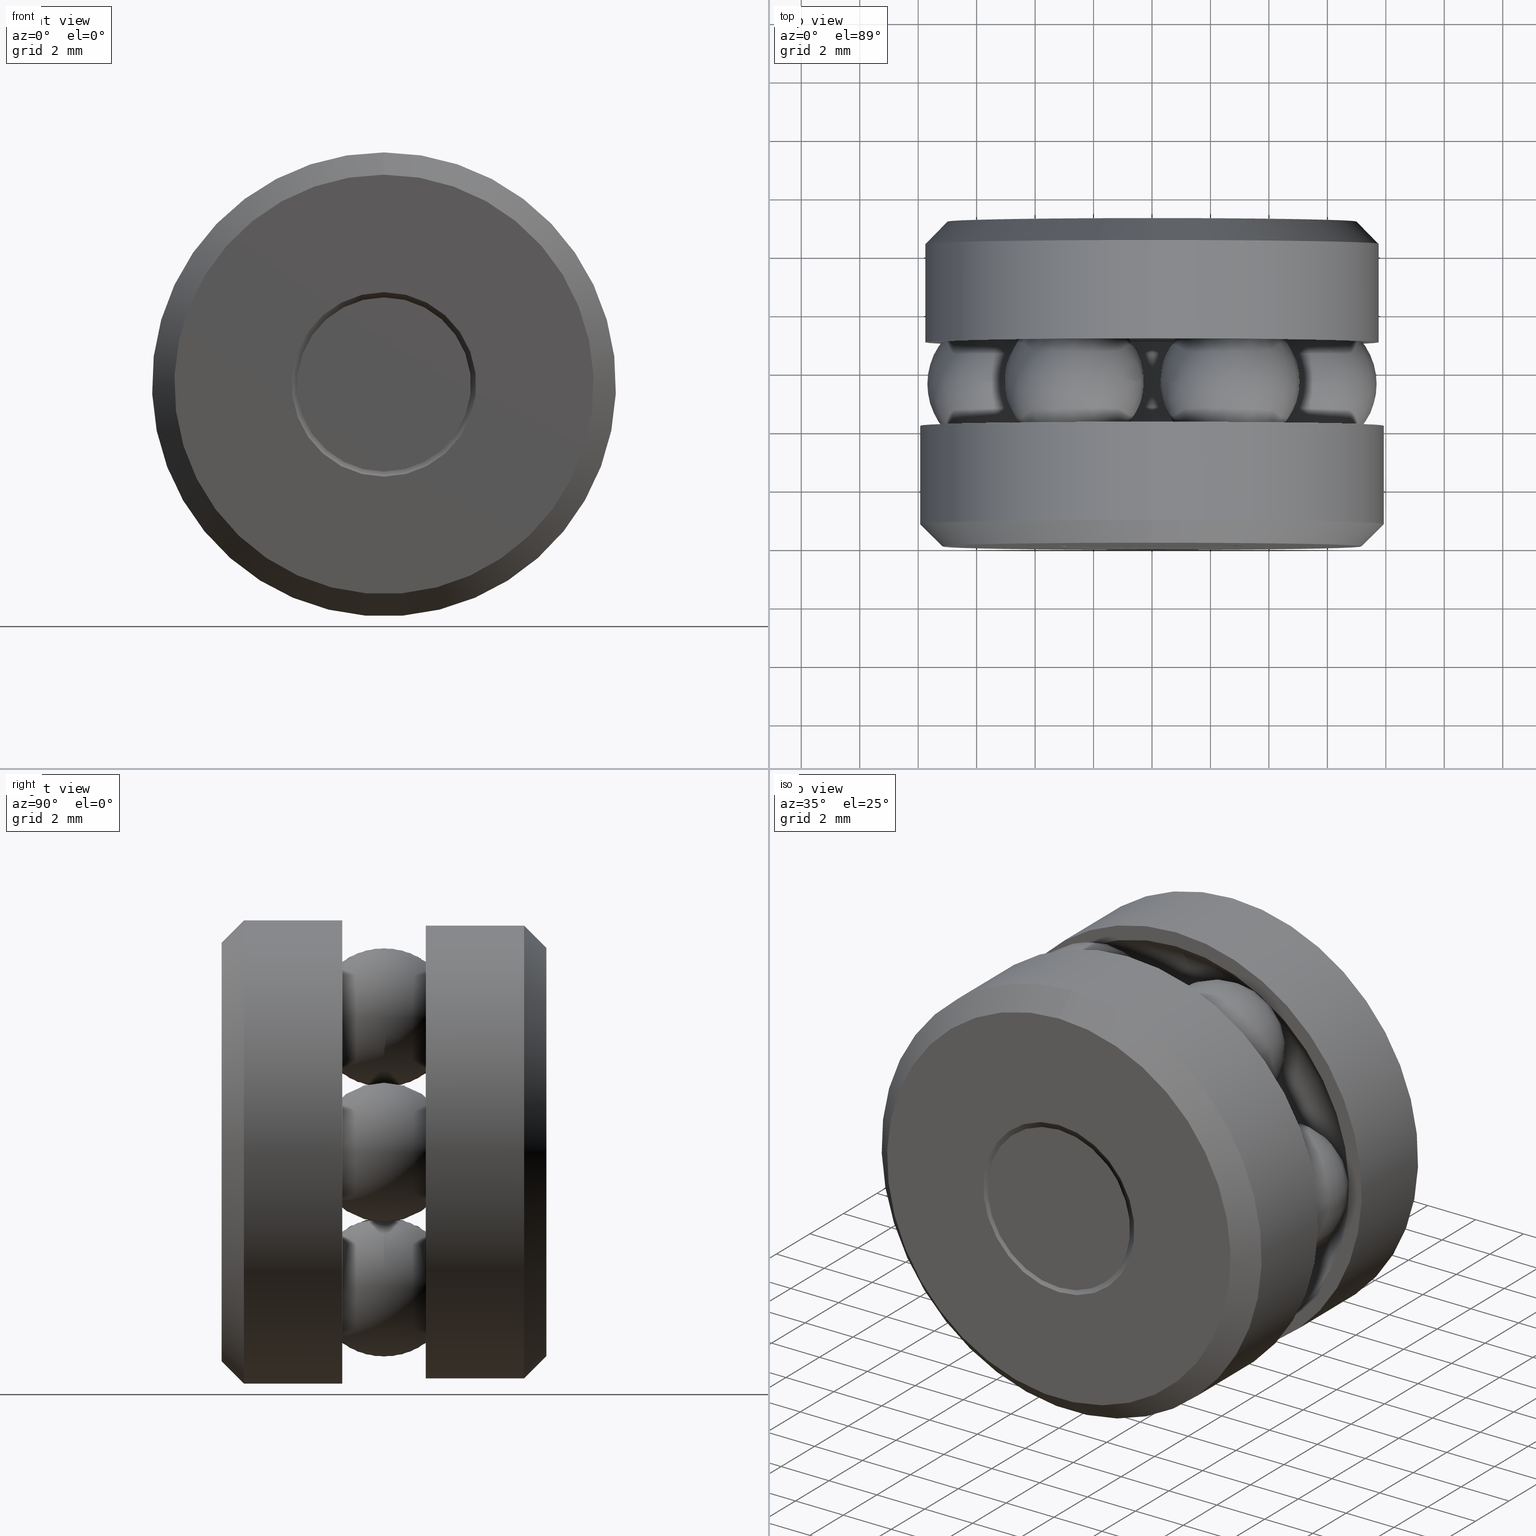
[diagram: canonical four-view strip — front | top / right | iso, engineering-drawing reading convention]
A machine part, canonical four-view strip (front | top / right | iso — engineering-drawing reading convention). The complete STEP part file that produces these views, byte-faithful:
ISO-10303-21;
HEADER;
FILE_DESCRIPTION (( 'STEP AP203' ),
    '1' );
FILE_NAME ('T-114RG_T-114RG-0010.step',
    '2016-02-04T15:34:08',
    ( '' ),
    ( '' ),
    'SwSTEP 2.0',
    'SolidWorks 2016',
    '' );
FILE_SCHEMA (( 'CONFIG_CONTROL_DESIGN' ));
ENDSEC;

DATA;
#1 = AXIS2_PLACEMENT_3D ( 'NONE', #13, #2, #132 ) ;
#2 = DIRECTION ( 'NONE',  ( -0.0000000000000000000, 1.000000000000000000, -0.0000000000000000000 ) ) ;
#3 = EDGE_LOOP ( 'NONE', ( #130 ) ) ;
#4 = FACE_OUTER_BOUND ( 'NONE', #224, .T. ) ;
#5 = ORIENTED_EDGE ( 'NONE', *, *, #222, .T. ) ;
#6 = AXIS2_PLACEMENT_3D ( 'NONE', #388, #401, #424 ) ;
#7 = ADVANCED_FACE ( 'NONE', ( #118 ), #383, .T. ) ;
#8 = VERTEX_POINT ( 'NONE', #527 ) ;
#9 = ORIENTED_EDGE ( 'NONE', *, *, #21, .F. ) ;
#10 = EDGE_LOOP ( 'NONE', ( #79 ) ) ;
#11 = EDGE_LOOP ( 'NONE', ( #114 ) ) ;
#12 = EDGE_LOOP ( 'NONE', ( #56 ) ) ;
#13 = CARTESIAN_POINT ( 'NONE',  ( 0.0000000000000000000, 0.0000000000000000000, 0.0000000000000000000 ) ) ;
#14 = AXIS2_PLACEMENT_3D ( 'NONE', #198, #193, #191 ) ;
#15 = AXIS2_PLACEMENT_3D ( 'NONE', #516, #270, #150 ) ;
#16 = AXIS2_PLACEMENT_3D ( 'NONE', #508, #171, #512 ) ;
#17 = DIRECTION ( 'NONE',  ( 0.0000000000000000000, 0.0000000000000000000, 1.000000000000000000 ) ) ;
#18 = CLOSED_SHELL ( 'NONE', ( #119 ) ) ;
#19 = AXIS2_PLACEMENT_3D ( 'NONE', #429, #312, #308 ) ;
#20 = PERSON_AND_ORGANIZATION ( #382, #482 ) ;
#21 = EDGE_CURVE ( 'NONE', #375, #375, #505, .T. ) ;
#22 = CARTESIAN_POINT ( 'NONE',  ( 0.2097499999999999900, 0.2187500000000000000, -1.464676421644694500E-015 ) ) ;
#23 = CC_DESIGN_PERSON_AND_ORGANIZATION_ASSIGNMENT ( #20, #367, ( #487 ) ) ;
#24 = DIRECTION ( 'NONE',  ( 0.0000000000000000000, 0.0000000000000000000, 1.000000000000000000 ) ) ;
#25 = ORIENTED_EDGE ( 'NONE', *, *, #365, .F. ) ;
#26 = ORIENTED_EDGE ( 'NONE', *, *, #325, .T. ) ;
#27 = DIRECTION ( 'NONE',  ( 0.0000000000000000000, 0.0000000000000000000, 1.000000000000000000 ) ) ;
#28 = DIRECTION ( 'NONE',  ( 0.0000000000000000000, 0.0000000000000000000, 1.000000000000000000 ) ) ;
#29 = MANIFOLD_SOLID_BREP ( 'Revolve3', #155 ) ;
#30 = DIRECTION ( 'NONE',  ( -0.0000000000000000000, 1.000000000000000000, -0.0000000000000000000 ) ) ;
#31 = CLOSED_SHELL ( 'NONE', ( #513 ) ) ;
#32 = ORIENTED_EDGE ( 'NONE', *, *, #131, .T. ) ;
#33 = COORDINATED_UNIVERSAL_TIME_OFFSET ( 5, 0, .BEHIND. ) ;
#34 = CARTESIAN_POINT ( 'NONE',  ( 0.0000000000000000000, 0.4375000000000000000, 0.0000000000000000000 ) ) ;
#35 = FACE_OUTER_BOUND ( 'NONE', #12, .T. ) ;
#36 = CARTESIAN_POINT ( 'NONE',  ( 0.1048750000000008600, 0.2187500000000000000, 0.1816488284437855500 ) ) ;
#37 = SPHERICAL_SURFACE ( 'NONE', #521, 0.09375000000000002800 ) ;
#38 = DIRECTION ( 'NONE',  ( -0.0000000000000000000, 1.000000000000000000, 0.0000000000000000000 ) ) ;
#39 = ORIENTED_EDGE ( 'NONE', *, *, #54, .T. ) ;
#40 = ORIENTED_EDGE ( 'NONE', *, *, #131, .F. ) ;
#41 = FACE_OUTER_BOUND ( 'NONE', #227, .T. ) ;
#42 = ORIENTED_EDGE ( 'NONE', *, *, #398, .F. ) ;
#43 = AXIS2_PLACEMENT_3D ( 'NONE', #92, #104, #128 ) ;
#44 = FACE_OUTER_BOUND ( 'NONE', #394, .T. ) ;
#45 = CONICAL_SURFACE ( 'NONE', #16, 0.2755000000000000800, 0.7853981633974426200 ) ;
#46 = ORIENTED_EDGE ( 'NONE', *, *, #333, .T. ) ;
#47 = DIRECTION ( 'NONE',  ( -0.0000000000000000000, 1.000000000000000000, -0.0000000000000000000 ) ) ;
#48 = AXIS2_PLACEMENT_3D ( 'NONE', #535, #452, #490 ) ;
#49 = DIRECTION ( 'NONE',  ( 0.0000000000000000000, 0.0000000000000000000, 1.000000000000000000 ) ) ;
#50 = ORIENTED_EDGE ( 'NONE', *, *, #333, .F. ) ;
#51 = ORIENTED_EDGE ( 'NONE', *, *, #222, .F. ) ;
#52 = ORIENTED_EDGE ( 'NONE', *, *, #167, .T. ) ;
#53 = AXIS2_PLACEMENT_3D ( 'NONE', #544, #102, #303 ) ;
#54 = EDGE_CURVE ( 'NONE', #274, #274, #440, .T. ) ;
#55 = FACE_OUTER_BOUND ( 'NONE', #209, .T. ) ;
#56 = ORIENTED_EDGE ( 'NONE', *, *, #223, .T. ) ;
#57 = ORIENTED_EDGE ( 'NONE', *, *, #208, .F. ) ;
#58 = ADVANCED_FACE ( 'NONE', ( #427, #517 ), #109, .F. ) ;
#59 = CC_DESIGN_DATE_AND_TIME_ASSIGNMENT ( #145, #359, ( #487 ) ) ;
#60 = CONICAL_SURFACE ( 'NONE', #548, 0.3125000000000000000, 0.7853981633974430600 ) ;
#61 = CIRCLE ( 'NONE', #163, 0.3125000000000000000 ) ;
#62 = DIRECTION ( 'NONE',  ( -0.0000000000000000000, 1.000000000000000000, -0.0000000000000000000 ) ) ;
#63 = ORIENTED_EDGE ( 'NONE', *, *, #348, .F. ) ;
#64 = ADVANCED_FACE ( 'NONE', ( #332, #292 ), #239, .T. ) ;
#65 = FACE_BOUND ( 'NONE', #258, .T. ) ;
#66 = ORIENTED_EDGE ( 'NONE', *, *, #407, .T. ) ;
#67 = FACE_BOUND ( 'NONE', #250, .T. ) ;
#68 = CARTESIAN_POINT ( 'NONE',  ( 0.1048749999999983000, 0.2187500000000000000, -0.1816488284437869600 ) ) ;
#69 = ORIENTED_EDGE ( 'NONE', *, *, #407, .F. ) ;
#70 = CARTESIAN_POINT ( 'NONE',  ( 0.0000000000000000000, 0.3807414321881346100, 0.0000000000000000000 ) ) ;
#71 = PRODUCT ( 'T-114RG_T-114RG-0010', 'T-114RG_T-114RG-0010', '', ( #293 ) ) ;
#72 = DIRECTION ( 'NONE',  ( -0.0000000000000000000, 1.000000000000000000, -0.0000000000000000000 ) ) ;
#73 = SPHERICAL_SURFACE ( 'NONE', #378, 0.09375000000000002800 ) ;
#74 = ORIENTED_EDGE ( 'NONE', *, *, #129, .T. ) ;
#75 = DIRECTION ( 'NONE',  ( 0.0000000000000000000, 0.0000000000000000000, 1.000000000000000000 ) ) ;
#76 = DIRECTION ( 'NONE',  ( 0.0000000000000000000, 0.0000000000000000000, 1.000000000000000000 ) ) ;
#77 = DIRECTION ( 'NONE',  ( -0.0000000000000000000, 1.000000000000000000, 0.0000000000000000000 ) ) ;
#78 = DIRECTION ( 'NONE',  ( -0.0000000000000000000, 1.000000000000000000, -0.0000000000000000000 ) ) ;
#79 = ORIENTED_EDGE ( 'NONE', *, *, #351, .T. ) ;
#80 = CLOSED_SHELL ( 'NONE', ( #259 ) ) ;
#81 = DATE_AND_TIME ( #210, #328 ) ;
#82 = CARTESIAN_POINT ( 'NONE',  ( 0.0000000000000000000, 0.3807414321881346100, 0.06750000000000006000 ) ) ;
#83 = CYLINDRICAL_SURFACE ( 'NONE', #15, 0.06250000000000002800 ) ;
#84 = CARTESIAN_POINT ( 'NONE',  ( 0.0000000000000000000, 0.2750000000000000200, 0.0000000000000000000 ) ) ;
#85 = EDGE_LOOP ( 'NONE', ( #66 ) ) ;
#86 = AXIS2_PLACEMENT_3D ( 'NONE', #323, #321, #317 ) ;
#87 = CARTESIAN_POINT ( 'NONE',  ( 0.0000000000000000000, 0.4074999999999997000, 0.3055000000000000500 ) ) ;
#88 = DIRECTION ( 'NONE',  ( 0.0000000000000000000, 0.0000000000000000000, 1.000000000000000000 ) ) ;
#89 = CARTESIAN_POINT ( 'NONE',  ( 0.0000000000000000000, 0.2750000000000000200, 0.06750000000000003200 ) ) ;
#90 = AXIS2_PLACEMENT_3D ( 'NONE', #468, #463, #465 ) ;
#91 = FACE_OUTER_BOUND ( 'NONE', #346, .T. ) ;
#92 = CARTESIAN_POINT ( 'NONE',  ( 0.0000000000000000000, 0.0000000000000000000, 0.0000000000000000000 ) ) ;
#93 = CARTESIAN_POINT ( 'NONE',  ( 0.0000000000000000000, 0.3828125000000000000, 0.0000000000000000000 ) ) ;
#94 = ORIENTED_EDGE ( 'NONE', *, *, #167, .F. ) ;
#95 = FACE_BOUND ( 'NONE', #498, .T. ) ;
#96 = AXIS2_PLACEMENT_3D ( 'NONE', #428, #38, #422 ) ;
#97 = DIRECTION ( 'NONE',  ( -0.0000000000000000000, 1.000000000000000000, -0.0000000000000000000 ) ) ;
#98 = EDGE_LOOP ( 'NONE', ( #26 ) ) ;
#99 = PERSON_AND_ORGANIZATION ( #382, #482 ) ;
#100 = FACE_OUTER_BOUND ( 'NONE', #3, .T. ) ;
#101 = PRODUCT_DEFINITION_FORMATION_WITH_SPECIFIED_SOURCE ( 'ANY', '', #71, .NOT_KNOWN. ) ;
#102 = DIRECTION ( 'NONE',  ( -0.0000000000000000000, 1.000000000000000000, -0.0000000000000000000 ) ) ;
#103 = DIRECTION ( 'NONE',  ( 0.8660254037844432600, -0.0000000000000000000, 0.4999999999999920100 ) ) ;
#104 = DIRECTION ( 'NONE',  ( -0.0000000000000000000, 1.000000000000000000, -0.0000000000000000000 ) ) ;
#105 = DIRECTION ( 'NONE',  ( -0.4999999999999920100, 0.0000000000000000000, 0.8660254037844432600 ) ) ;
#106 = VERTEX_POINT ( 'NONE', #108 ) ;
#107 = ADVANCED_BREP_SHAPE_REPRESENTATION ( 'T-114RG_T-114RG-0010', ( #402, #262, #352, #29, #160, #479, #435, #318, #457, #445 ), #174 ) ;
#108 = CARTESIAN_POINT ( 'NONE',  ( 0.0000000000000000000, 0.1624999999999999800, 0.3125000000000000000 ) ) ;
#109 = CONICAL_SURFACE ( 'NONE', #48, 0.1242585678118648500, 0.7853981633974429500 ) ;
#110 = DIRECTION ( 'NONE',  ( 0.0000000000000000000, 0.0000000000000000000, 1.000000000000000000 ) ) ;
#111 = CARTESIAN_POINT ( 'NONE',  ( 0.0000000000000000000, 0.4375000000000000000, 0.1242585678118649400 ) ) ;
#112 = DIRECTION ( 'NONE',  ( -0.0000000000000000000, 1.000000000000000000, 0.0000000000000000000 ) ) ;
#113 = ORIENTED_EDGE ( 'NONE', *, *, #507, .T. ) ;
#114 = ORIENTED_EDGE ( 'NONE', *, *, #351, .F. ) ;
#115 = AXIS2_PLACEMENT_3D ( 'NONE', #366, #528, #17 ) ;
#116 = CARTESIAN_POINT ( 'NONE',  ( 0.0000000000000000000, -4.033012303457140400E-017, 0.2825000000000000300 ) ) ;
#117 = PERSON_AND_ORGANIZATION ( #382, #482 ) ;
#118 = FACE_OUTER_BOUND ( 'NONE', #275, .T. ) ;
#119 = ADVANCED_FACE ( 'NONE', ( ), #320, .T. ) ;
#120 = PLANE ( 'NONE',  #304 ) ;
#121 = ADVANCED_FACE ( 'NONE', ( ), #218, .T. ) ;
#122 = FACE_OUTER_BOUND ( 'NONE', #85, .T. ) ;
#123 = CARTESIAN_POINT ( 'NONE',  ( 0.0000000000000000000, 0.0000000000000000000, 0.0000000000000000000 ) ) ;
#124 = VERTEX_POINT ( 'NONE', #138 ) ;
#125 = CARTESIAN_POINT ( 'NONE',  ( 0.0000000000000000000, 0.05468750000000001400, 0.06250000000000001400 ) ) ;
#126 = AXIS2_PLACEMENT_3D ( 'NONE', #494, #492, #363 ) ;
#127 = FACE_OUTER_BOUND ( 'NONE', #442, .T. ) ;
#128 = DIRECTION ( 'NONE',  ( 0.0000000000000000000, 0.0000000000000000000, 1.000000000000000000 ) ) ;
#129 = EDGE_CURVE ( 'NONE', #157, #157, #344, .T. ) ;
#130 = ORIENTED_EDGE ( 'NONE', *, *, #484, .F. ) ;
#131 = EDGE_CURVE ( 'NONE', #8, #8, #169, .T. ) ;
#132 = DIRECTION ( 'NONE',  ( 0.0000000000000000000, 0.0000000000000000000, 1.000000000000000000 ) ) ;
#133 = CALENDAR_DATE ( 2016, 4, 2 ) ;
#134 = CARTESIAN_POINT ( 'NONE',  ( 0.0000000000000000000, 0.2750000000000000200, 0.2847500000000000000 ) ) ;
#135 = DIRECTION ( 'NONE',  ( 0.5000000000000101000, 0.0000000000000000000, 0.8660254037844329300 ) ) ;
#136 = APPROVAL ( #358, 'UNSPECIFIED' ) ;
#137 = DIRECTION ( 'NONE',  ( 0.0000000000000000000, 0.0000000000000000000, 1.000000000000000000 ) ) ;
#138 = CARTESIAN_POINT ( 'NONE',  ( 0.0000000000000000000, 0.2750000000000000200, 0.3055000000000000500 ) ) ;
#139 = VERTEX_POINT ( 'NONE', #186 ) ;
#140 = FACE_BOUND ( 'NONE', #152, .T. ) ;
#141 = CARTESIAN_POINT ( 'NONE',  ( 0.0000000000000000000, 0.05675856781186545300, 0.06750000000000000400 ) ) ;
#142 = ORIENTED_EDGE ( 'NONE', *, *, #254, .F. ) ;
#143 = ORIENTED_EDGE ( 'NONE', *, *, #269, .F. ) ;
#144 = CARTESIAN_POINT ( 'NONE',  ( 0.0000000000000000000, 0.05468750000000001400, 0.0000000000000000000 ) ) ;
#145 = DATE_AND_TIME ( #268, #372 ) ;
#146 = DIRECTION ( 'NONE',  ( 0.0000000000000000000, 0.0000000000000000000, -1.000000000000000000 ) ) ;
#147 = DIRECTION ( 'NONE',  ( -0.0000000000000000000, 1.000000000000000000, -0.0000000000000000000 ) ) ;
#148 = AXIS2_PLACEMENT_3D ( 'NONE', #542, #523, #514 ) ;
#149 = CARTESIAN_POINT ( 'NONE',  ( 0.0000000000000000000, 0.1624999999999999800, 0.0000000000000000000 ) ) ;
#150 = DIRECTION ( 'NONE',  ( 0.0000000000000000000, 0.0000000000000000000, 1.000000000000000000 ) ) ;
#151 = AXIS2_PLACEMENT_3D ( 'NONE', #412, #481, #477 ) ;
#152 = EDGE_LOOP ( 'NONE', ( #454 ) ) ;
#153 = DIRECTION ( 'NONE',  ( 0.8660254037844329300, 0.0000000000000000000, -0.5000000000000101000 ) ) ;
#154 = CIRCLE ( 'NONE', #189, 0.06250000000000001400 ) ;
#155 = CLOSED_SHELL ( 'NONE', ( #121 ) ) ;
#156 = DIRECTION ( 'NONE',  ( -0.0000000000000000000, 1.000000000000000000, -0.0000000000000000000 ) ) ;
#157 = VERTEX_POINT ( 'NONE', #263 ) ;
#158 = ORIENTED_EDGE ( 'NONE', *, *, #269, .T. ) ;
#159 = CARTESIAN_POINT ( 'NONE',  ( -0.1048750000000021200, 0.2187500000000000000, -0.1816488284437848000 ) ) ;
#160 = MANIFOLD_SOLID_BREP ( 'BALLS[1]', #18 ) ;
#161 = AXIS2_PLACEMENT_3D ( 'NONE', #455, #458, #491 ) ;
#162 = DIRECTION ( 'NONE',  ( -0.0000000000000000000, 1.000000000000000000, -0.0000000000000000000 ) ) ;
#163 = AXIS2_PLACEMENT_3D ( 'NONE', #170, #164, #547 ) ;
#164 = DIRECTION ( 'NONE',  ( -0.0000000000000000000, 1.000000000000000000, -0.0000000000000000000 ) ) ;
#165 = ORIENTED_EDGE ( 'NONE', *, *, #223, .F. ) ;
#166 = APPROVAL_DATE_TIME ( #278, #510 ) ;
#167 = EDGE_CURVE ( 'NONE', #456, #456, #493, .T. ) ;
#168 = DIRECTION ( 'NONE',  ( 0.0000000000000000000, 0.0000000000000000000, 1.000000000000000000 ) ) ;
#169 = CIRCLE ( 'NONE', #370, 0.06750000000000001800 ) ;
#170 = CARTESIAN_POINT ( 'NONE',  ( 0.0000000000000000000, 0.1624999999999999800, 0.0000000000000000000 ) ) ;
#171 = DIRECTION ( 'NONE',  ( 0.0000000000000000000, -1.000000000000000000, 0.0000000000000000000 ) ) ;
#172 = CIRCLE ( 'NONE', #473, 0.2847499999999999500 ) ;
#173 = EDGE_LOOP ( 'NONE', ( #289 ) ) ;
#174 =( GEOMETRIC_REPRESENTATION_CONTEXT ( 3 ) GLOBAL_UNCERTAINTY_ASSIGNED_CONTEXT ( ( #217 ) ) GLOBAL_UNIT_ASSIGNED_CONTEXT ( ( #322, #319, #350 ) ) REPRESENTATION_CONTEXT ( 'NONE', 'WORKASPACE' ) );
#175 = CC_DESIGN_APPROVAL ( #136, ( #101 ) ) ;
#176 = ADVANCED_FACE ( 'NONE', ( ), #37, .T. ) ;
#177 = CARTESIAN_POINT ( 'NONE',  ( 0.0000000000000000000, 0.05468750000000001400, 0.0000000000000000000 ) ) ;
#178 = SHAPE_DEFINITION_REPRESENTATION ( #470, #107 ) ;
#179 = DIRECTION ( 'NONE',  ( -0.0000000000000000000, 1.000000000000000000, -0.0000000000000000000 ) ) ;
#180 = FACE_BOUND ( 'NONE', #486, .T. ) ;
#181 = ADVANCED_FACE ( 'NONE', ( #55, #196 ), #120, .T. ) ;
#182 = DIRECTION ( 'NONE',  ( -0.0000000000000000000, 1.000000000000000000, -0.0000000000000000000 ) ) ;
#183 = CARTESIAN_POINT ( 'NONE',  ( 0.0000000000000000000, 0.1624999999999999500, 0.2847499999999999500 ) ) ;
#184 = CARTESIAN_POINT ( 'NONE',  ( 0.0000000000000000000, 0.1625000000000000300, 0.0000000000000000000 ) ) ;
#185 = APPROVAL_PERSON_ORGANIZATION ( #295, #510, #314 ) ;
#186 = CARTESIAN_POINT ( 'NONE',  ( 0.0000000000000000000, 0.0000000000000000000, 0.1171874999999994600 ) ) ;
#187 = CARTESIAN_POINT ( 'NONE',  ( 0.0000000000000000000, 0.4375000000000000000, 0.1171874999999995400 ) ) ;
#188 = AXIS2_PLACEMENT_3D ( 'NONE', #144, #549, #146 ) ;
#189 = AXIS2_PLACEMENT_3D ( 'NONE', #177, #506, #504 ) ;
#190 = ORIENTED_EDGE ( 'NONE', *, *, #280, .F. ) ;
#191 = DIRECTION ( 'NONE',  ( 0.0000000000000000000, 0.0000000000000000000, 1.000000000000000000 ) ) ;
#192 = CIRCLE ( 'NONE', #271, 0.06750000000000000400 ) ;
#193 = DIRECTION ( 'NONE',  ( -0.0000000000000000000, 1.000000000000000000, -0.0000000000000000000 ) ) ;
#194 = SECURITY_CLASSIFICATION_LEVEL ( 'unclassified' ) ;
#195 = APPROVAL_ROLE ( '' ) ;
#196 = FACE_BOUND ( 'NONE', #449, .T. ) ;
#197 = CARTESIAN_POINT ( 'NONE',  ( -0.1347499999999999800, 0.1625000000000000100, 0.0000000000000000000 ) ) ;
#198 = CARTESIAN_POINT ( 'NONE',  ( 0.0000000000000000000, 0.4375000000000000000, 0.0000000000000000000 ) ) ;
#199 = DESIGN_CONTEXT ( 'detailed design', #282, 'design' ) ;
#200 = ORIENTED_EDGE ( 'NONE', *, *, #348, .T. ) ;
#201 = PLANE ( 'NONE',  #221 ) ;
#202 = CARTESIAN_POINT ( 'NONE',  ( -0.1242585678118649400, 0.4375000000000000000, 0.0000000000000000000 ) ) ;
#203 = FACE_BOUND ( 'NONE', #450, .T. ) ;
#204 = CC_DESIGN_PERSON_AND_ORGANIZATION_ASSIGNMENT ( #347, #340, ( #101 ) ) ;
#205 = DIRECTION ( 'NONE',  ( 1.000000000000000000, 0.0000000000000000000, 0.0000000000000000000 ) ) ;
#206 = DIRECTION ( 'NONE',  ( 0.0000000000000000000, 0.0000000000000000000, -1.000000000000000000 ) ) ;
#207 = PLANE ( 'NONE',  #496 ) ;
#208 = EDGE_CURVE ( 'NONE', #369, #369, #307, .T. ) ;
#209 = EDGE_LOOP ( 'NONE', ( #74 ) ) ;
#210 = CALENDAR_DATE ( 2016, 4, 2 ) ;
#211 = CONICAL_SURFACE ( 'NONE', #188, 0.06250000000000001400, 0.7853981633974431700 ) ;
#212 = ADVANCED_FACE ( 'NONE', ( #464, #426 ), #405, .F. ) ;
#213 = DIRECTION ( 'NONE',  ( 0.0000000000000000000, 0.0000000000000000000, 1.000000000000000000 ) ) ;
#214 = AXIS2_PLACEMENT_3D ( 'NONE', #70, #62, #88 ) ;
#215 = ADVANCED_FACE ( 'NONE', ( #439, #95 ), #534, .F. ) ;
#216 = CARTESIAN_POINT ( 'NONE',  ( 0.0000000000000000000, 0.05675856781186545300, 0.0000000000000000000 ) ) ;
#217 = UNCERTAINTY_MEASURE_WITH_UNIT (LENGTH_MEASURE( 1.000000000000000100E-005 ), #322, 'distance_accuracy_value', 'NONE');
#218 = SPHERICAL_SURFACE ( 'NONE', #436, 0.09375000000000002800 ) ;
#219 = DIRECTION ( 'NONE',  ( 0.0000000000000000000, -0.0000000000000000000, -1.000000000000000000 ) ) ;
#220 = AXIS2_PLACEMENT_3D ( 'NONE', #472, #179, #500 ) ;
#221 = AXIS2_PLACEMENT_3D ( 'NONE', #256, #249, #248 ) ;
#222 = EDGE_CURVE ( 'NONE', #261, #261, #444, .T. ) ;
#223 = EDGE_CURVE ( 'NONE', #139, #139, #284, .T. ) ;
#224 = EDGE_LOOP ( 'NONE', ( #32 ) ) ;
#225 = DATE_AND_TIME ( #336, #431 ) ;
#226 = CARTESIAN_POINT ( 'NONE',  ( 0.0000000000000000000, 0.2750000000000000200, 0.1347500000000000400 ) ) ;
#227 = EDGE_LOOP ( 'NONE', ( #361 ) ) ;
#228 = FACE_OUTER_BOUND ( 'NONE', #10, .T. ) ;
#229 = CC_DESIGN_PERSON_AND_ORGANIZATION_ASSIGNMENT ( #236, #334, ( #101 ) ) ;
#230 = CARTESIAN_POINT ( 'NONE',  ( 0.0000000000000000000, 0.1624999999999999800, 0.1347500000000000100 ) ) ;
#231 = VERTEX_POINT ( 'NONE', #111 ) ;
#232 = CARTESIAN_POINT ( 'NONE',  ( -0.1048749999999995700, 0.2187500000000000000, 0.1816488284437862400 ) ) ;
#233 = DIRECTION ( 'NONE',  ( -0.8660254037844398200, 0.0000000000000000000, -0.4999999999999980000 ) ) ;
#234 =( LENGTH_UNIT ( ) NAMED_UNIT ( * ) SI_UNIT ( $, .METRE. ) );
#235 = EDGE_LOOP ( 'NONE', ( #51 ) ) ;
#236 = PERSON_AND_ORGANIZATION ( #382, #482 ) ;
#237 = APPROVAL_STATUS ( 'not_yet_approved' ) ;
#238 = DIRECTION ( 'NONE',  ( 0.4999999999999980000, 0.0000000000000000000, -0.8660254037844398200 ) ) ;
#239 = PLANE ( 'NONE',  #526 ) ;
#240 = DATE_TIME_ROLE ( 'classification_date' ) ;
#241 = AXIS2_PLACEMENT_3D ( 'NONE', #497, #495, #485 ) ;
#242 = PERSON_AND_ORGANIZATION_ROLE ( 'classification_officer' ) ;
#243 = CARTESIAN_POINT ( 'NONE',  ( -0.2097499999999999900, 0.2187500000000000000, 0.0000000000000000000 ) ) ;
#244 = AXIS2_PLACEMENT_3D ( 'NONE', #393, #423, #403 ) ;
#245 = VERTEX_POINT ( 'NONE', #82 ) ;
#246 = PLANE ( 'NONE',  #96 ) ;
#247 = CARTESIAN_POINT ( 'NONE',  ( -0.1242585678118648500, -2.064570570440816200E-017, 0.0000000000000000000 ) ) ;
#248 = DIRECTION ( 'NONE',  ( 0.0000000000000000000, -0.0000000000000000000, -1.000000000000000000 ) ) ;
#249 = DIRECTION ( 'NONE',  ( 0.0000000000000000000, -1.000000000000000000, 0.0000000000000000000 ) ) ;
#250 = EDGE_LOOP ( 'NONE', ( #430 ) ) ;
#251 = EDGE_LOOP ( 'NONE', ( #40 ) ) ;
#252 = CARTESIAN_POINT ( 'NONE',  ( 0.0000000000000000000, 0.03000000000000025900, 0.0000000000000000000 ) ) ;
#253 = LOCAL_TIME ( 10, 34, 8.000000000000000000, #362 ) ;
#254 = EDGE_CURVE ( 'NONE', #541, #541, #172, .T. ) ;
#255 = ADVANCED_FACE ( 'NONE', ( ), #73, .T. ) ;
#256 = CARTESIAN_POINT ( 'NONE',  ( -0.1347500000000000100, 0.2750000000000000200, 0.0000000000000000000 ) ) ;
#257 = SECURITY_CLASSIFICATION ( '', '', #194 ) ;
#258 = EDGE_LOOP ( 'NONE', ( #200 ) ) ;
#259 = ADVANCED_FACE ( 'NONE', ( ), #453, .T. ) ;
#260 = EDGE_LOOP ( 'NONE', ( #143 ) ) ;
#261 = VERTEX_POINT ( 'NONE', #187 ) ;
#262 = MANIFOLD_SOLID_BREP ( 'Revolve2[2]', #530 ) ;
#263 = CARTESIAN_POINT ( 'NONE',  ( 0.0000000000000000000, 0.4375000000000000000, 0.2755000000000000800 ) ) ;
#264 = CARTESIAN_POINT ( 'NONE',  ( 0.0000000000000000000, -9.612883742449206100E-019, 0.1242585678118648500 ) ) ;
#265 = FACE_OUTER_BOUND ( 'NONE', #235, .T. ) ;
#266 = EDGE_LOOP ( 'NONE', ( #5 ) ) ;
#267 = CARTESIAN_POINT ( 'NONE',  ( 0.0000000000000000000, 0.03000000000000025900, 0.3125000000000000000 ) ) ;
#268 = CALENDAR_DATE ( 2016, 4, 2 ) ;
#269 = EDGE_CURVE ( 'NONE', #448, #448, #404, .T. ) ;
#270 = DIRECTION ( 'NONE',  ( -0.0000000000000000000, 1.000000000000000000, -0.0000000000000000000 ) ) ;
#271 = AXIS2_PLACEMENT_3D ( 'NONE', #216, #72, #75 ) ;
#272 = CIRCLE ( 'NONE', #483, 0.3055000000000000500 ) ;
#273 = AXIS2_PLACEMENT_3D ( 'NONE', #34, #30, #28 ) ;
#274 = VERTEX_POINT ( 'NONE', #267 ) ;
#275 = EDGE_LOOP ( 'NONE', ( #165 ) ) ;
#276 = DIRECTION ( 'NONE',  ( 1.000000000000000000, 0.0000000000000000000, 0.0000000000000000000 ) ) ;
#277 = APPLICATION_CONTEXT ( 'configuration controlled 3d designs of mechanical parts and assemblies' ) ;
#278 = DATE_AND_TIME ( #381, #469 ) ;
#279 = DIRECTION ( 'NONE',  ( -0.0000000000000000000, 1.000000000000000000, -0.0000000000000000000 ) ) ;
#280 = EDGE_CURVE ( 'NONE', #354, #354, #417, .T. ) ;
#281 = CARTESIAN_POINT ( 'NONE',  ( 0.0000000000000000000, 0.1624999999999999500, 0.0000000000000000000 ) ) ;
#282 = APPLICATION_CONTEXT ( 'configuration controlled 3d designs of mechanical parts and assemblies' ) ;
#283 = DIRECTION ( 'NONE',  ( 6.982962677686265900E-015, -0.0000000000000000000, 1.000000000000000000 ) ) ;
#284 = CIRCLE ( 'NONE', #1, 0.1171874999999994600 ) ;
#285 = EDGE_LOOP ( 'NONE', ( #190 ) ) ;
#286 = CLOSED_SHELL ( 'NONE', ( #475, #471, #64, #58, #377, #511, #550, #341 ) ) ;
#287 = FACE_OUTER_BOUND ( 'NONE', #266, .T. ) ;
#288 = CC_DESIGN_PERSON_AND_ORGANIZATION_ASSIGNMENT ( #117, #242, ( #257 ) ) ;
#289 = ORIENTED_EDGE ( 'NONE', *, *, #21, .T. ) ;
#290 = PERSON_AND_ORGANIZATION_ROLE ( 'design_owner' ) ;
#291 = SPHERICAL_SURFACE ( 'NONE', #326, 0.09375000000000002800 ) ;
#292 = FACE_OUTER_BOUND ( 'NONE', #467, .T. ) ;
#293 = MECHANICAL_CONTEXT ( 'NONE', #277, 'mechanical' ) ;
#294 = DIRECTION ( 'NONE',  ( -1.000000000000000000, 0.0000000000000000000, 6.982962677686265900E-015 ) ) ;
#295 = PERSON_AND_ORGANIZATION ( #382, #482 ) ;
#296 = DIRECTION ( 'NONE',  ( 0.0000000000000000000, 0.0000000000000000000, 1.000000000000000000 ) ) ;
#297 = CLOSED_SHELL ( 'NONE', ( #255 ) ) ;
#298 = ADVANCED_FACE ( 'NONE', ( #65, #91 ), #396, .T. ) ;
#299 = ORIENTED_EDGE ( 'NONE', *, *, #54, .F. ) ;
#300 = DIRECTION ( 'NONE',  ( -0.5000000000000040000, 0.0000000000000000000, -0.8660254037844363800 ) ) ;
#301 = TOROIDAL_SURFACE ( 'NONE', #349, 0.2097499999999999900, 0.09374999999999998600 ) ;
#302 = ADVANCED_FACE ( 'NONE', ( #356, #127 ), #331, .F. ) ;
#303 = DIRECTION ( 'NONE',  ( 0.0000000000000000000, 0.0000000000000000000, 1.000000000000000000 ) ) ;
#304 = AXIS2_PLACEMENT_3D ( 'NONE', #202, #112, #110 ) ;
#305 = DIRECTION ( 'NONE',  ( -0.8660254037844363800, 0.0000000000000000000, 0.5000000000000040000 ) ) ;
#306 = DIRECTION ( 'NONE',  ( 0.0000000000000000000, 0.0000000000000000000, 1.000000000000000000 ) ) ;
#307 = CIRCLE ( 'NONE', #502, 0.1347500000000000400 ) ;
#308 = DIRECTION ( 'NONE',  ( 0.0000000000000000000, 0.0000000000000000000, 1.000000000000000000 ) ) ;
#309 = ORIENTED_EDGE ( 'NONE', *, *, #398, .T. ) ;
#310 = ORIENTED_EDGE ( 'NONE', *, *, #325, .F. ) ;
#311 = CIRCLE ( 'NONE', #459, 0.06250000000000006900 ) ;
#312 = DIRECTION ( 'NONE',  ( -0.0000000000000000000, 1.000000000000000000, -0.0000000000000000000 ) ) ;
#313 = CC_DESIGN_DATE_AND_TIME_ASSIGNMENT ( #225, #240, ( #257 ) ) ;
#314 = APPROVAL_ROLE ( '' ) ;
#315 = APPROVAL_STATUS ( 'not_yet_approved' ) ;
#316 = APPLICATION_PROTOCOL_DEFINITION ( 'international standard', 'config_control_design', 1994, #282 ) ;
#317 = DIRECTION ( 'NONE',  ( 0.0000000000000000000, 0.0000000000000000000, 1.000000000000000000 ) ) ;
#318 = MANIFOLD_SOLID_BREP ( 'BALLS[4]', #31 ) ;
#319 =( NAMED_UNIT ( * ) PLANE_ANGLE_UNIT ( ) SI_UNIT ( $, .RADIAN. ) );
#320 = SPHERICAL_SURFACE ( 'NONE', #480, 0.09375000000000002800 ) ;
#321 = DIRECTION ( 'NONE',  ( -0.0000000000000000000, 1.000000000000000000, -0.0000000000000000000 ) ) ;
#322 =( CONVERSION_BASED_UNIT ( 'INCH', #415 ) LENGTH_UNIT ( ) NAMED_UNIT ( #380 ) );
#323 = CARTESIAN_POINT ( 'NONE',  ( 0.0000000000000000000, 0.3807414321881346100, 0.0000000000000000000 ) ) ;
#324 = DIRECTION ( 'NONE',  ( 0.0000000000000000000, 0.0000000000000000000, 1.000000000000000000 ) ) ;
#325 = EDGE_CURVE ( 'NONE', #245, #245, #400, .T. ) ;
#326 = AXIS2_PLACEMENT_3D ( 'NONE', #68, #103, #105 ) ;
#327 = EDGE_LOOP ( 'NONE', ( #46 ) ) ;
#328 = LOCAL_TIME ( 10, 34, 8.000000000000000000, #420 ) ;
#329 = EDGE_LOOP ( 'NONE', ( #371 ) ) ;
#330 = FACE_OUTER_BOUND ( 'NONE', #397, .T. ) ;
#331 = TOROIDAL_SURFACE ( 'NONE', #460, 0.2097499999999999900, 0.09374999999999998600 ) ;
#332 = FACE_BOUND ( 'NONE', #173, .T. ) ;
#333 = EDGE_CURVE ( 'NONE', #124, #124, #272, .T. ) ;
#334 = PERSON_AND_ORGANIZATION_ROLE ( 'design_supplier' ) ;
#335 = CLOSED_SHELL ( 'NONE', ( #176 ) ) ;
#336 = CALENDAR_DATE ( 2016, 4, 2 ) ;
#337 = FACE_OUTER_BOUND ( 'NONE', #545, .T. ) ;
#338 = ADVANCED_FACE ( 'NONE', ( #140, #265 ), #524, .T. ) ;
#339 = APPROVAL ( #237, 'UNSPECIFIED' ) ;
#340 = PERSON_AND_ORGANIZATION_ROLE ( 'creator' ) ;
#341 = ADVANCED_FACE ( 'NONE', ( #122, #180 ), #246, .T. ) ;
#342 = APPROVAL_ROLE ( '' ) ;
#343 = VERTEX_POINT ( 'NONE', #116 ) ;
#344 = CIRCLE ( 'NONE', #14, 0.2755000000000000800 ) ;
#345 = APPLICATION_PROTOCOL_DEFINITION ( 'international standard', 'config_control_design', 1994, #277 ) ;
#346 = EDGE_LOOP ( 'NONE', ( #50 ) ) ;
#347 = PERSON_AND_ORGANIZATION ( #382, #482 ) ;
#348 = EDGE_CURVE ( 'NONE', #525, #525, #353, .T. ) ;
#349 = AXIS2_PLACEMENT_3D ( 'NONE', #529, #97, #27 ) ;
#350 =( NAMED_UNIT ( * ) SI_UNIT ( $, .STERADIAN. ) SOLID_ANGLE_UNIT ( ) );
#351 = EDGE_CURVE ( 'NONE', #437, #437, #154, .T. ) ;
#352 = MANIFOLD_SOLID_BREP ( 'Revolve2[3]', #286 ) ;
#353 = CIRCLE ( 'NONE', #53, 0.2847500000000000000 ) ;
#354 = VERTEX_POINT ( 'NONE', #87 ) ;
#355 = AXIS2_PLACEMENT_3D ( 'NONE', #36, #305, #300 ) ;
#356 = FACE_OUTER_BOUND ( 'NONE', #418, .T. ) ;
#357 = AXIS2_PLACEMENT_3D ( 'NONE', #539, #156, #538 ) ;
#358 = APPROVAL_STATUS ( 'not_yet_approved' ) ;
#359 = DATE_TIME_ROLE ( 'creation_date' ) ;
#360 = EDGE_LOOP ( 'NONE', ( #518 ) ) ;
#361 = ORIENTED_EDGE ( 'NONE', *, *, #507, .F. ) ;
#362 = COORDINATED_UNIVERSAL_TIME_OFFSET ( 5, 0, .BEHIND. ) ;
#363 = DIRECTION ( 'NONE',  ( 0.0000000000000000000, 0.0000000000000000000, 1.000000000000000000 ) ) ;
#364 = CARTESIAN_POINT ( 'NONE',  ( 0.0000000000000000000, 0.2750000000000000200, 0.0000000000000000000 ) ) ;
#365 = EDGE_CURVE ( 'NONE', #343, #343, #384, .T. ) ;
#366 = CARTESIAN_POINT ( 'NONE',  ( 0.0000000000000000000, 0.4375000000000000000, 0.0000000000000000000 ) ) ;
#367 = PERSON_AND_ORGANIZATION_ROLE ( 'creator' ) ;
#368 = CC_DESIGN_APPROVAL ( #339, ( #257 ) ) ;
#369 = VERTEX_POINT ( 'NONE', #226 ) ;
#370 = AXIS2_PLACEMENT_3D ( 'NONE', #184, #182, #168 ) ;
#371 = ORIENTED_EDGE ( 'NONE', *, *, #365, .T. ) ;
#372 = LOCAL_TIME ( 10, 34, 8.000000000000000000, #462 ) ;
#373 = FACE_OUTER_BOUND ( 'NONE', #285, .T. ) ;
#374 = ADVANCED_FACE ( 'NONE', ( #287 ), #503, .T. ) ;
#375 = VERTEX_POINT ( 'NONE', #264 ) ;
#376 = EDGE_LOOP ( 'NONE', ( #309 ) ) ;
#377 = ADVANCED_FACE ( 'NONE', ( #4, #41 ), #395, .F. ) ;
#378 = AXIS2_PLACEMENT_3D ( 'NONE', #22, #283, #294 ) ;
#379 = FACE_OUTER_BOUND ( 'NONE', #327, .T. ) ;
#380 = DIMENSIONAL_EXPONENTS ( 1.000000000000000000, 0.0000000000000000000, 0.0000000000000000000, 0.0000000000000000000, 0.0000000000000000000, 0.0000000000000000000, 0.0000000000000000000 ) ;
#381 = CALENDAR_DATE ( 2016, 4, 2 ) ;
#382 = PERSON ( 'UNSPECIFIED', 'UNSPECIFIED', 'UNSPECIFIED', ('UNSPECIFIED'), ('UNSPECIFIED'), ('UNSPECIFIED') ) ;
#383 = PLANE ( 'NONE',  #90 ) ;
#384 = CIRCLE ( 'NONE', #241, 0.2825000000000000300 ) ;
#385 = CIRCLE ( 'NONE', #115, 0.1242585678118649400 ) ;
#386 = FACE_OUTER_BOUND ( 'NONE', #474, .T. ) ;
#387 = CC_DESIGN_SECURITY_CLASSIFICATION ( #257, ( #101 ) ) ;
#388 = CARTESIAN_POINT ( 'NONE',  ( -0.3055000000000000500, 0.2750000000000000200, 0.0000000000000000000 ) ) ;
#389 = PERSON_AND_ORGANIZATION ( #382, #482 ) ;
#390 = DIRECTION ( 'NONE',  ( 0.0000000000000000000, 0.0000000000000000000, 1.000000000000000000 ) ) ;
#391 = DIRECTION ( 'NONE',  ( -0.0000000000000000000, 1.000000000000000000, -0.0000000000000000000 ) ) ;
#392 = CARTESIAN_POINT ( 'NONE',  ( 0.0000000000000000000, 0.2750000000000000200, 0.0000000000000000000 ) ) ;
#393 = CARTESIAN_POINT ( 'NONE',  ( 0.0000000000000000000, 0.4074999999999997000, 0.0000000000000000000 ) ) ;
#394 = EDGE_LOOP ( 'NONE', ( #94 ) ) ;
#395 = CYLINDRICAL_SURFACE ( 'NONE', #220, 0.06750000000000001800 ) ;
#396 = PLANE ( 'NONE',  #6 ) ;
#397 = EDGE_LOOP ( 'NONE', ( #39 ) ) ;
#398 = EDGE_CURVE ( 'NONE', #231, #231, #385, .T. ) ;
#399 = FACE_OUTER_BOUND ( 'NONE', #532, .T. ) ;
#400 = CIRCLE ( 'NONE', #86, 0.06750000000000006000 ) ;
#401 = DIRECTION ( 'NONE',  ( 0.0000000000000000000, -1.000000000000000000, 0.0000000000000000000 ) ) ;
#402 = MANIFOLD_SOLID_BREP ( 'Revolve2[1]', #461 ) ;
#403 = DIRECTION ( 'NONE',  ( 0.0000000000000000000, 0.0000000000000000000, 1.000000000000000000 ) ) ;
#404 = CIRCLE ( 'NONE', #522, 0.06750000000000003200 ) ;
#405 = CYLINDRICAL_SURFACE ( 'NONE', #43, 0.06750000000000004600 ) ;
#406 = EDGE_LOOP ( 'NONE', ( #9 ) ) ;
#407 = EDGE_CURVE ( 'NONE', #106, #106, #61, .T. ) ;
#408 = ORIENTED_EDGE ( 'NONE', *, *, #208, .T. ) ;
#409 = ADVANCED_FACE ( 'NONE', ( #411, #67 ), #45, .T. ) ;
#410 = FACE_OUTER_BOUND ( 'NONE', #543, .T. ) ;
#411 = FACE_OUTER_BOUND ( 'NONE', #360, .T. ) ;
#412 = CARTESIAN_POINT ( 'NONE',  ( 0.0000000000000000000, 0.4375000000000000600, 0.0000000000000000000 ) ) ;
#413 = PRODUCT_RELATED_PRODUCT_CATEGORY ( 'detail', '', ( #71 ) ) ;
#414 = ADVANCED_FACE ( 'NONE', ( #379, #373 ), #520, .T. ) ;
#415 = LENGTH_MEASURE_WITH_UNIT ( LENGTH_MEASURE( 0.02539999999999999900 ), #234 );
#416 = DIRECTION ( 'NONE',  ( -0.0000000000000000000, 1.000000000000000000, -0.0000000000000000000 ) ) ;
#417 = CIRCLE ( 'NONE', #244, 0.3055000000000000500 ) ;
#418 = EDGE_LOOP ( 'NONE', ( #408 ) ) ;
#419 = DIRECTION ( 'NONE',  ( -0.0000000000000000000, 1.000000000000000000, -0.0000000000000000000 ) ) ;
#420 = COORDINATED_UNIVERSAL_TIME_OFFSET ( 5, 0, .BEHIND. ) ;
#421 = FACE_BOUND ( 'NONE', #329, .T. ) ;
#422 = DIRECTION ( 'NONE',  ( 0.0000000000000000000, 0.0000000000000000000, 1.000000000000000000 ) ) ;
#423 = DIRECTION ( 'NONE',  ( -0.0000000000000000000, 1.000000000000000000, -0.0000000000000000000 ) ) ;
#424 = DIRECTION ( 'NONE',  ( 0.0000000000000000000, -0.0000000000000000000, -1.000000000000000000 ) ) ;
#425 = VERTEX_POINT ( 'NONE', #141 ) ;
#426 = FACE_OUTER_BOUND ( 'NONE', #260, .T. ) ;
#427 = FACE_BOUND ( 'NONE', #488, .T. ) ;
#428 = CARTESIAN_POINT ( 'NONE',  ( -0.3125000000000000000, 0.1624999999999999800, 0.0000000000000000000 ) ) ;
#429 = CARTESIAN_POINT ( 'NONE',  ( 0.0000000000000000000, 0.4375000000000000000, 0.0000000000000000000 ) ) ;
#430 = ORIENTED_EDGE ( 'NONE', *, *, #129, .F. ) ;
#431 = LOCAL_TIME ( 10, 34, 8.000000000000000000, #519 ) ;
#432 = FACE_BOUND ( 'NONE', #11, .T. ) ;
#433 = CARTESIAN_POINT ( 'NONE',  ( 0.0000000000000000000, 0.2187500000000000000, 0.0000000000000000000 ) ) ;
#434 = AXIS2_PLACEMENT_3D ( 'NONE', #149, #147, #137 ) ;
#435 = MANIFOLD_SOLID_BREP ( 'BALLS[3]', #297 ) ;
#436 = AXIS2_PLACEMENT_3D ( 'NONE', #243, #206, #205 ) ;
#437 = VERTEX_POINT ( 'NONE', #125 ) ;
#438 = EDGE_LOOP ( 'NONE', ( #69 ) ) ;
#439 = FACE_OUTER_BOUND ( 'NONE', #376, .T. ) ;
#440 = CIRCLE ( 'NONE', #126, 0.3125000000000000000 ) ;
#441 = ORIENTED_EDGE ( 'NONE', *, *, #254, .T. ) ;
#442 = EDGE_LOOP ( 'NONE', ( #63 ) ) ;
#443 = APPROVAL_DATE_TIME ( #533, #136 ) ;
#444 = CIRCLE ( 'NONE', #273, 0.1171874999999995400 ) ;
#445 = AXIS2_PLACEMENT_3D ( 'NONE', #123, #324, #276 ) ;
#446 = ADVANCED_FACE ( 'NONE', ( #35, #432 ), #211, .T. ) ;
#447 = ADVANCED_FACE ( 'NONE', ( #228, #100 ), #83, .T. ) ;
#448 = VERTEX_POINT ( 'NONE', #89 ) ;
#449 = EDGE_LOOP ( 'NONE', ( #42 ) ) ;
#450 = EDGE_LOOP ( 'NONE', ( #158 ) ) ;
#451 = APPROVAL_PERSON_ORGANIZATION ( #546, #136, #342 ) ;
#452 = DIRECTION ( 'NONE',  ( 0.0000000000000000000, -1.000000000000000000, 0.0000000000000000000 ) ) ;
#453 = SPHERICAL_SURFACE ( 'NONE', #355, 0.09375000000000002800 ) ;
#454 = ORIENTED_EDGE ( 'NONE', *, *, #484, .T. ) ;
#455 = CARTESIAN_POINT ( 'NONE',  ( 0.0000000000000000000, -9.612883742449206100E-019, 0.0000000000000000000 ) ) ;
#456 = VERTEX_POINT ( 'NONE', #230 ) ;
#457 = MANIFOLD_SOLID_BREP ( 'BALLS[5]', #335 ) ;
#458 = DIRECTION ( 'NONE',  ( -0.0000000000000000000, 1.000000000000000000, -0.0000000000000000000 ) ) ;
#459 = AXIS2_PLACEMENT_3D ( 'NONE', #93, #47, #49 ) ;
#460 = AXIS2_PLACEMENT_3D ( 'NONE', #433, #419, #306 ) ;
#461 = CLOSED_SHELL ( 'NONE', ( #7, #374, #338, #447, #446 ) ) ;
#462 = COORDINATED_UNIVERSAL_TIME_OFFSET ( 5, 0, .BEHIND. ) ;
#463 = DIRECTION ( 'NONE',  ( 0.0000000000000000000, -1.000000000000000000, 0.0000000000000000000 ) ) ;
#464 = FACE_OUTER_BOUND ( 'NONE', #98, .T. ) ;
#465 = DIRECTION ( 'NONE',  ( 0.0000000000000000000, -0.0000000000000000000, -1.000000000000000000 ) ) ;
#466 = CC_DESIGN_PERSON_AND_ORGANIZATION_ASSIGNMENT ( #389, #290, ( #71 ) ) ;
#467 = EDGE_LOOP ( 'NONE', ( #25 ) ) ;
#468 = CARTESIAN_POINT ( 'NONE',  ( -0.1171874999999994600, 0.0000000000000000000, 0.0000000000000000000 ) ) ;
#469 = LOCAL_TIME ( 10, 34, 8.000000000000000000, #33 ) ;
#470 = PRODUCT_DEFINITION_SHAPE ( 'NONE', 'NONE',  #487 ) ;
#471 = ADVANCED_FACE ( 'NONE', ( #421, #337 ), #60, .T. ) ;
#472 = CARTESIAN_POINT ( 'NONE',  ( 0.0000000000000000000, 0.0000000000000000000, 0.0000000000000000000 ) ) ;
#473 = AXIS2_PLACEMENT_3D ( 'NONE', #281, #279, #296 ) ;
#474 = EDGE_LOOP ( 'NONE', ( #441 ) ) ;
#475 = ADVANCED_FACE ( 'NONE', ( #330, #501 ), #489, .T. ) ;
#476 = FACE_BOUND ( 'NONE', #251, .T. ) ;
#477 = DIRECTION ( 'NONE',  ( 0.0000000000000000000, 0.0000000000000000000, 1.000000000000000000 ) ) ;
#478 = ADVANCED_FACE ( 'NONE', ( #203, #399 ), #201, .T. ) ;
#479 = MANIFOLD_SOLID_BREP ( 'BALLS[2]', #80 ) ;
#480 = AXIS2_PLACEMENT_3D ( 'NONE', #232, #233, #238 ) ;
#481 = DIRECTION ( 'NONE',  ( -0.0000000000000000000, 1.000000000000000000, 0.0000000000000000000 ) ) ;
#482 = ORGANIZATION ( 'UNSPECIFIED', 'UNSPECIFIED', '' ) ;
#483 = AXIS2_PLACEMENT_3D ( 'NONE', #364, #416, #213 ) ;
#484 = EDGE_CURVE ( 'NONE', #515, #515, #311, .T. ) ;
#485 = DIRECTION ( 'NONE',  ( 0.0000000000000000000, 0.0000000000000000000, 1.000000000000000000 ) ) ;
#486 = EDGE_LOOP ( 'NONE', ( #142 ) ) ;
#487 = PRODUCT_DEFINITION ( 'UNKNOWN', '', #101, #199 ) ;
#488 = EDGE_LOOP ( 'NONE', ( #113 ) ) ;
#489 = CYLINDRICAL_SURFACE ( 'NONE', #357, 0.3125000000000000000 ) ;
#490 = DIRECTION ( 'NONE',  ( 0.0000000000000000000, 0.0000000000000000000, -1.000000000000000000 ) ) ;
#491 = DIRECTION ( 'NONE',  ( 0.0000000000000000000, 0.0000000000000000000, 1.000000000000000000 ) ) ;
#492 = DIRECTION ( 'NONE',  ( -0.0000000000000000000, 1.000000000000000000, -0.0000000000000000000 ) ) ;
#493 = CIRCLE ( 'NONE', #434, 0.1347500000000000100 ) ;
#494 = CARTESIAN_POINT ( 'NONE',  ( 0.0000000000000000000, 0.03000000000000025900, 0.0000000000000000000 ) ) ;
#495 = DIRECTION ( 'NONE',  ( -0.0000000000000000000, 1.000000000000000000, -0.0000000000000000000 ) ) ;
#496 = AXIS2_PLACEMENT_3D ( 'NONE', #197, #77, #24 ) ;
#497 = CARTESIAN_POINT ( 'NONE',  ( 0.0000000000000000000, -4.033012303457140400E-017, 0.0000000000000000000 ) ) ;
#498 = EDGE_LOOP ( 'NONE', ( #310 ) ) ;
#499 = APPROVAL_DATE_TIME ( #81, #339 ) ;
#500 = DIRECTION ( 'NONE',  ( 0.0000000000000000000, 0.0000000000000000000, 1.000000000000000000 ) ) ;
#501 = FACE_OUTER_BOUND ( 'NONE', #438, .T. ) ;
#502 = AXIS2_PLACEMENT_3D ( 'NONE', #84, #78, #76 ) ;
#503 = PLANE ( 'NONE',  #151 ) ;
#504 = DIRECTION ( 'NONE',  ( 0.0000000000000000000, 0.0000000000000000000, 1.000000000000000000 ) ) ;
#505 = CIRCLE ( 'NONE', #161, 0.1242585678118648500 ) ;
#506 = DIRECTION ( 'NONE',  ( -0.0000000000000000000, 1.000000000000000000, -0.0000000000000000000 ) ) ;
#507 = EDGE_CURVE ( 'NONE', #425, #425, #192, .T. ) ;
#508 = CARTESIAN_POINT ( 'NONE',  ( 0.0000000000000000000, 0.4375000000000000000, 0.0000000000000000000 ) ) ;
#509 = APPROVAL_PERSON_ORGANIZATION ( #99, #339, #195 ) ;
#510 = APPROVAL ( #315, 'UNSPECIFIED' ) ;
#511 = ADVANCED_FACE ( 'NONE', ( #410, #476 ), #207, .T. ) ;
#512 = DIRECTION ( 'NONE',  ( 0.0000000000000000000, 0.0000000000000000000, -1.000000000000000000 ) ) ;
#513 = ADVANCED_FACE ( 'NONE', ( ), #291, .T. ) ;
#514 = DIRECTION ( 'NONE',  ( 0.0000000000000000000, 0.0000000000000000000, 1.000000000000000000 ) ) ;
#515 = VERTEX_POINT ( 'NONE', #536 ) ;
#516 = CARTESIAN_POINT ( 'NONE',  ( 0.0000000000000000000, 0.0000000000000000000, 0.0000000000000000000 ) ) ;
#517 = FACE_OUTER_BOUND ( 'NONE', #406, .T. ) ;
#518 = ORIENTED_EDGE ( 'NONE', *, *, #280, .T. ) ;
#519 = COORDINATED_UNIVERSAL_TIME_OFFSET ( 5, 0, .BEHIND. ) ;
#520 = CYLINDRICAL_SURFACE ( 'NONE', #148, 0.3055000000000000500 ) ;
#521 = AXIS2_PLACEMENT_3D ( 'NONE', #159, #153, #135 ) ;
#522 = AXIS2_PLACEMENT_3D ( 'NONE', #392, #391, #390 ) ;
#523 = DIRECTION ( 'NONE',  ( -0.0000000000000000000, 1.000000000000000000, -0.0000000000000000000 ) ) ;
#524 = CONICAL_SURFACE ( 'NONE', #19, 0.1171874999999995400, 0.7853981633974437300 ) ;
#525 = VERTEX_POINT ( 'NONE', #134 ) ;
#526 = AXIS2_PLACEMENT_3D ( 'NONE', #247, #540, #219 ) ;
#527 = CARTESIAN_POINT ( 'NONE',  ( 0.0000000000000000000, 0.1625000000000000300, 0.06750000000000001800 ) ) ;
#528 = DIRECTION ( 'NONE',  ( -0.0000000000000000000, 1.000000000000000000, -0.0000000000000000000 ) ) ;
#529 = CARTESIAN_POINT ( 'NONE',  ( 0.0000000000000000000, 0.2187500000000000000, 0.0000000000000000000 ) ) ;
#530 = CLOSED_SHELL ( 'NONE', ( #215, #212, #478, #302, #298, #414, #409, #181 ) ) ;
#531 = DIRECTION ( 'NONE',  ( 0.0000000000000000000, 0.0000000000000000000, 1.000000000000000000 ) ) ;
#532 = EDGE_LOOP ( 'NONE', ( #57 ) ) ;
#533 = DATE_AND_TIME ( #133, #253 ) ;
#534 = CONICAL_SURFACE ( 'NONE', #214, 0.06750000000000006000, 0.7853981633974438400 ) ;
#535 = CARTESIAN_POINT ( 'NONE',  ( 0.0000000000000000000, -9.612883742449206100E-019, 0.0000000000000000000 ) ) ;
#536 = CARTESIAN_POINT ( 'NONE',  ( 0.0000000000000000000, 0.3828125000000000000, 0.06250000000000006900 ) ) ;
#537 = CC_DESIGN_APPROVAL ( #510, ( #487 ) ) ;
#538 = DIRECTION ( 'NONE',  ( 0.0000000000000000000, 0.0000000000000000000, 1.000000000000000000 ) ) ;
#539 = CARTESIAN_POINT ( 'NONE',  ( 0.0000000000000000000, 0.0000000000000000000, 0.0000000000000000000 ) ) ;
#540 = DIRECTION ( 'NONE',  ( 0.0000000000000000000, -1.000000000000000000, 0.0000000000000000000 ) ) ;
#541 = VERTEX_POINT ( 'NONE', #183 ) ;
#542 = CARTESIAN_POINT ( 'NONE',  ( 0.0000000000000000000, 0.0000000000000000000, 0.0000000000000000000 ) ) ;
#543 = EDGE_LOOP ( 'NONE', ( #52 ) ) ;
#544 = CARTESIAN_POINT ( 'NONE',  ( 0.0000000000000000000, 0.2750000000000000200, 0.0000000000000000000 ) ) ;
#545 = EDGE_LOOP ( 'NONE', ( #299 ) ) ;
#546 = PERSON_AND_ORGANIZATION ( #382, #482 ) ;
#547 = DIRECTION ( 'NONE',  ( 0.0000000000000000000, 0.0000000000000000000, 1.000000000000000000 ) ) ;
#548 = AXIS2_PLACEMENT_3D ( 'NONE', #252, #162, #531 ) ;
#549 = DIRECTION ( 'NONE',  ( 0.0000000000000000000, -1.000000000000000000, 0.0000000000000000000 ) ) ;
#550 = ADVANCED_FACE ( 'NONE', ( #386, #44 ), #301, .F. ) ;
ENDSEC;
END-ISO-10303-21;
